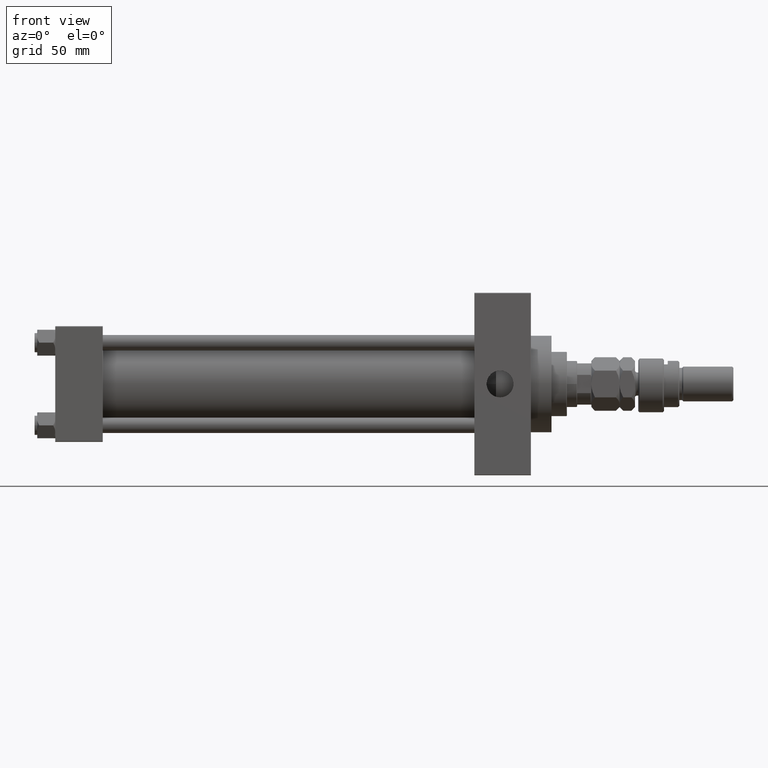
[diagram: clean part render]
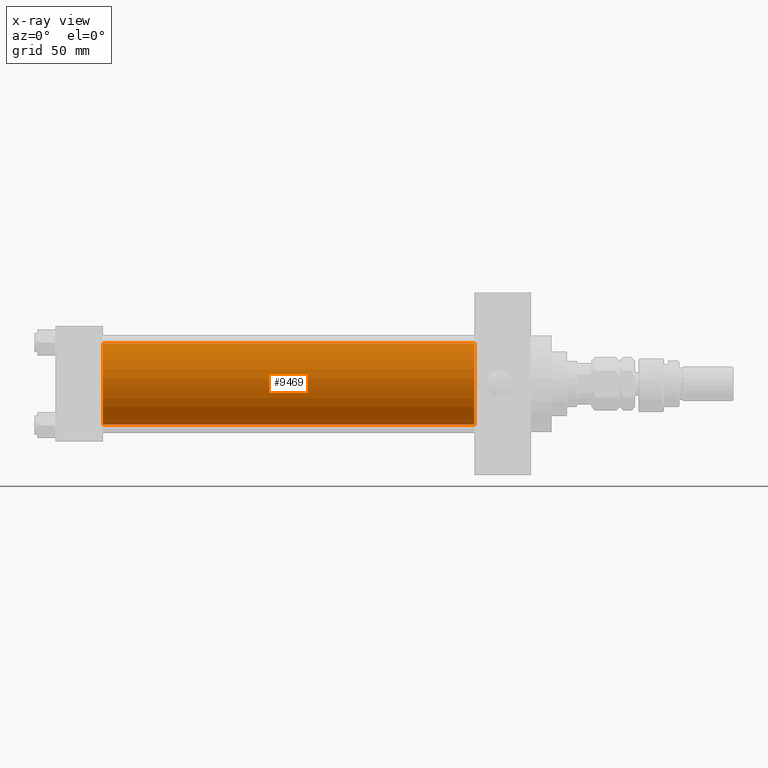
[diagram: x-ray — body ghosted, one internal face saturated and labeled with its STEP entity id]
A machine part, front view, then the same camera in x-ray: the body is ghosted and one INTERNAL B-rep face — a face not visible from any outside direction — is saturated and labeled: STEP entity #9469.
In plain terms, the highlighted cylindrical surface (partial cylindrical patch) has radius 31.5 mm, axis along (-1, -0, -0).
Its self-contained STEP definition (entity closure, byte-faithful):
#2598 = ORIENTED_EDGE ( 'NONE', *, *, #35376, .T. ) ;
#6043 = LINE ( 'NONE', #33011, #28133 ) ;
#6200 = AXIS2_PLACEMENT_3D ( 'NONE', #44038, #9189, #40218 ) ;
#6268 = ORIENTED_EDGE ( 'NONE', *, *, #23752, .F. ) ;
#6350 = CARTESIAN_POINT ( 'NONE',  ( 37.00000000000000000, 1.255552203348951850E-15, -31.50000000000000000 ) ) ;
#7572 = VERTEX_POINT ( 'NONE', #34415 ) ;
#9189 = DIRECTION ( 'NONE',  ( 1.000000000000000000, 0.000000000000000000, 0.000000000000000000 ) ) ;
#9469 = ADVANCED_FACE ( 'NONE', ( #39081 ), #39564, .F. ) ;
#10489 = VERTEX_POINT ( 'NONE', #40610 ) ;
#11331 = AXIS2_PLACEMENT_3D ( 'NONE', #49216, #15141, #33962 ) ;
#12719 = VECTOR ( 'NONE', #49851, 1000.000000000000000 ) ;
#13513 = CIRCLE ( 'NONE', #6200, 31.50000000000000000 ) ;
#13683 = DIRECTION ( 'NONE',  ( -1.000000000000000000, -0.000000000000000000, -0.000000000000000000 ) ) ;
#15141 = DIRECTION ( 'NONE',  ( 1.000000000000000000, 0.000000000000000000, 0.000000000000000000 ) ) ;
#15375 = AXIS2_PLACEMENT_3D ( 'NONE', #27644, #42641, #31190 ) ;
#17014 = CIRCLE ( 'NONE', #11331, 31.50000000000000000 ) ;
#18847 = LINE ( 'NONE', #46045, #12719 ) ;
#20053 = VERTEX_POINT ( 'NONE', #32270 ) ;
#23117 = EDGE_CURVE ( 'NONE', #10489, #35102, #6043, .T. ) ;
#23752 = EDGE_CURVE ( 'NONE', #20053, #35102, #13513, .T. ) ;
#23843 = ORIENTED_EDGE ( 'NONE', *, *, #23975, .F. ) ;
#23975 = EDGE_CURVE ( 'NONE', #7572, #20053, #18847, .T. ) ;
#27644 = CARTESIAN_POINT ( 'NONE',  ( 325.9999999999999432, -2.602085213965210642E-15, 0.000000000000000000 ) ) ;
#28133 = VECTOR ( 'NONE', #13683, 1000.000000000000000 ) ;
#28455 = ORIENTED_EDGE ( 'NONE', *, *, #23117, .T. ) ;
#31190 = DIRECTION ( 'NONE',  ( 0.000000000000000000, 0.000000000000000000, 1.000000000000000000 ) ) ;
#31333 = EDGE_LOOP ( 'NONE', ( #2598, #28455, #6268, #23843 ) ) ;
#32270 = CARTESIAN_POINT ( 'NONE',  ( 37.00000000000000000, -2.602085213965210642E-15, 31.50000000000000000 ) ) ;
#33011 = CARTESIAN_POINT ( 'NONE',  ( 325.9999999999999432, 1.255552203348951850E-15, -31.50000000000000000 ) ) ;
#33962 = DIRECTION ( 'NONE',  ( 0.000000000000000000, 0.000000000000000000, -1.000000000000000000 ) ) ;
#34415 = CARTESIAN_POINT ( 'NONE',  ( 325.9999999999999432, -2.602085213965210642E-15, 31.50000000000000000 ) ) ;
#35102 = VERTEX_POINT ( 'NONE', #6350 ) ;
#35376 = EDGE_CURVE ( 'NONE', #7572, #10489, #17014, .T. ) ;
#39081 = FACE_OUTER_BOUND ( 'NONE', #31333, .T. ) ;
#39564 = CYLINDRICAL_SURFACE ( 'NONE', #15375, 31.50000000000000000 ) ;
#40218 = DIRECTION ( 'NONE',  ( 0.000000000000000000, 0.000000000000000000, -1.000000000000000000 ) ) ;
#40610 = CARTESIAN_POINT ( 'NONE',  ( 325.9999999999999432, 1.255552203348951850E-15, -31.50000000000000000 ) ) ;
#42641 = DIRECTION ( 'NONE',  ( -1.000000000000000000, -0.000000000000000000, -0.000000000000000000 ) ) ;
#44038 = CARTESIAN_POINT ( 'NONE',  ( 37.00000000000000000, -2.602085213965210642E-15, 0.000000000000000000 ) ) ;
#46045 = CARTESIAN_POINT ( 'NONE',  ( 325.9999999999999432, -2.602085213965210642E-15, 31.50000000000000000 ) ) ;
#49216 = CARTESIAN_POINT ( 'NONE',  ( 325.9999999999999432, -2.602085213965210642E-15, 0.000000000000000000 ) ) ;
#49851 = DIRECTION ( 'NONE',  ( -1.000000000000000000, -0.000000000000000000, -0.000000000000000000 ) ) ;